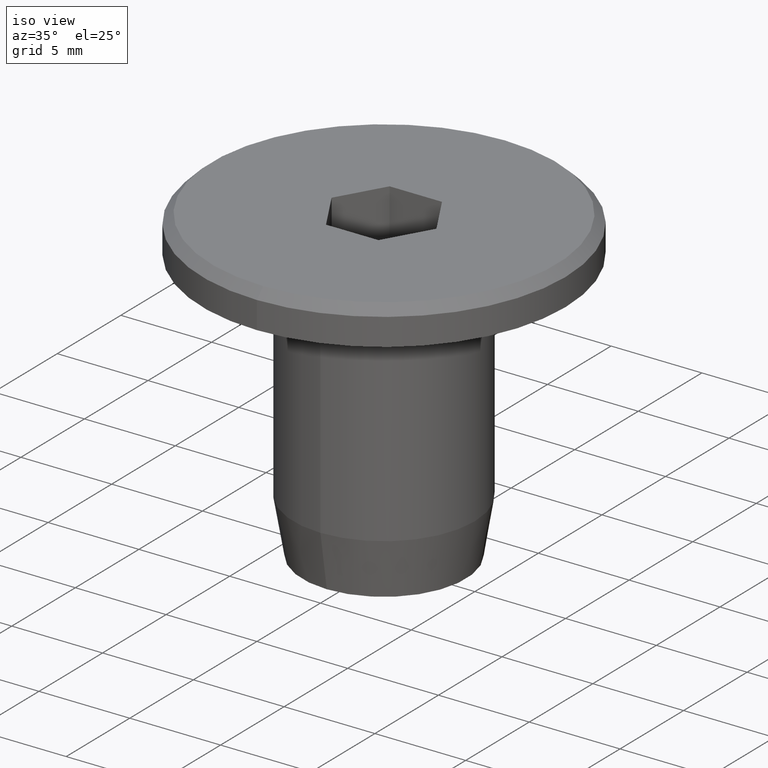
[diagram: clean part render]
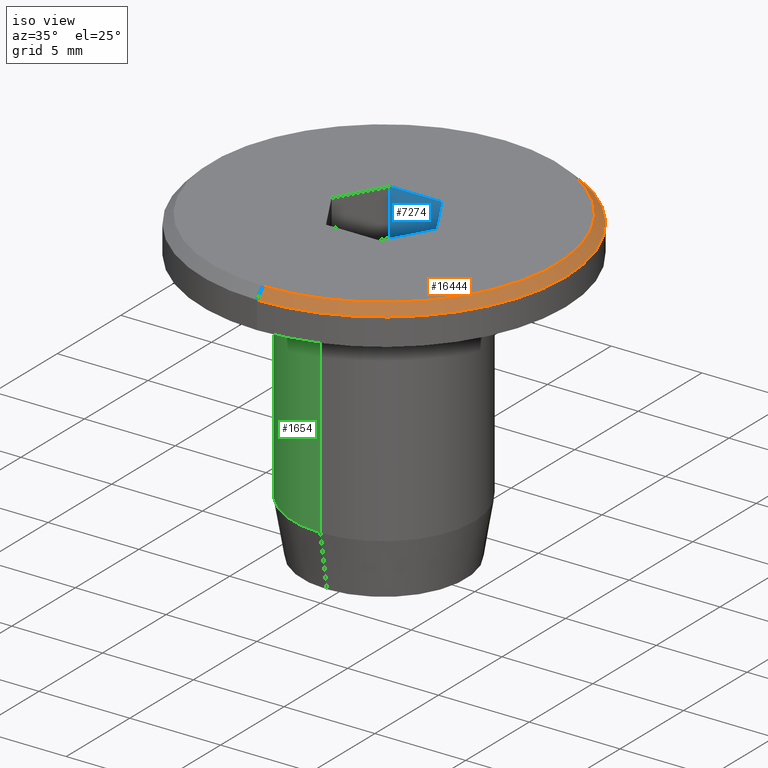
[diagram: same view with three faces highlighted in distinct colors, each labeled with its STEP entity id]
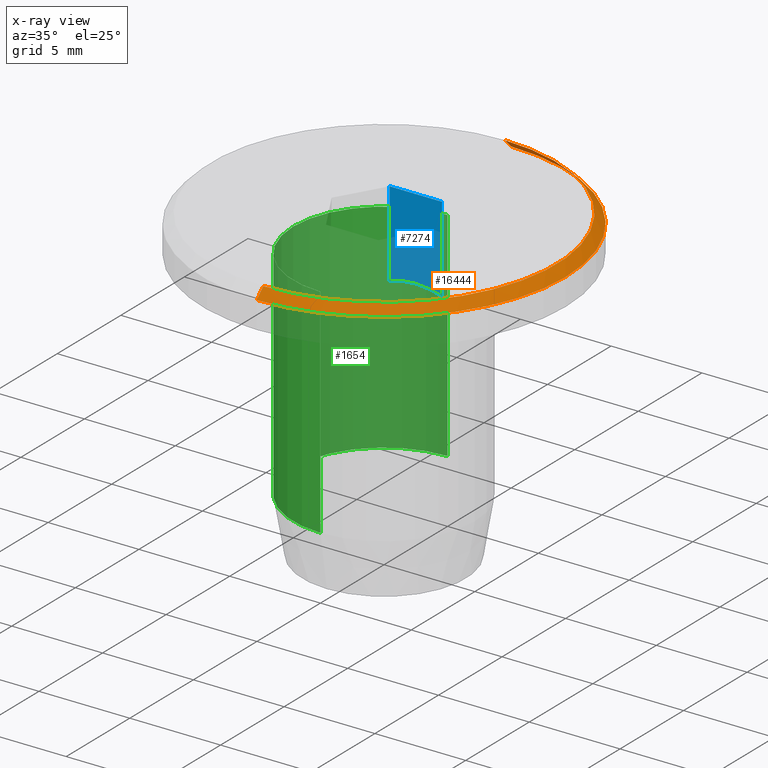
[diagram: x-ray of the same camera — body ghosted, the three highlighted faces saturated]
A machine part, iso view with three faces highlighted in distinct colors.
The next image is the same camera in x-ray (body ghosted, the three faces saturated) — at least one of them is partly hidden behind the body in this view.
Their STEP definitions:

[orange] entity #16444 — the highlighted conical surface has half-angle 45 deg.
#1358 = DIRECTION ( 'NONE',  ( 0.0000000000000000000, 0.7071067811865514600, -0.7071067811865435800 ) ) ;
#1519 = CARTESIAN_POINT ( 'NONE',  ( 1.224646799147353300E-015, -10.00000000000000000, 8.000000000000007100 ) ) ;
#2180 = CARTESIAN_POINT ( 'NONE',  ( 1.224646799147353300E-015, -10.00000000000000000, 8.000000000000003600 ) ) ;
#2277 = VECTOR ( 'NONE', #4426, 999.9999999999998900 ) ;
#3090 = FACE_OUTER_BOUND ( 'NONE', #11276, .T. ) ;
#3468 = DIRECTION ( 'NONE',  ( 0.0000000000000000000, -1.000000000000000000, -1.734723475976807100E-016 ) ) ;
#4426 = DIRECTION ( 'NONE',  ( 8.659560562354979700E-017, -0.7071067811865510100, -0.7071067811865441300 ) ) ;
#4471 = DIRECTION ( 'NONE',  ( 0.0000000000000000000, -1.000000000000000000, -1.826024711554532700E-016 ) ) ;
#5118 = CARTESIAN_POINT ( 'NONE',  ( 0.0000000000000000000, 9.500000000000005300, 8.500000000000000000 ) ) ;
#5761 = ORIENTED_EDGE ( 'NONE', *, *, #14198, .F. ) ;
#5838 = CARTESIAN_POINT ( 'NONE',  ( 0.0000000000000000000, 10.00000000000000000, 8.000000000000007100 ) ) ;
#6059 = EDGE_CURVE ( 'NONE', #14277, #10894, #9957, .T. ) ;
#6091 = VERTEX_POINT ( 'NONE', #13892 ) ;
#6457 = DIRECTION ( 'NONE',  ( 0.0000000000000000000, 1.000000000000000000, 1.734723475976807100E-016 ) ) ;
#7315 = CARTESIAN_POINT ( 'NONE',  ( 0.0000000000000000000, -7.470345474798859200E-016, 8.499999999999998200 ) ) ;
#7438 = DIRECTION ( 'NONE',  ( -0.0000000000000000000, 2.500348904555542100E-016, -1.000000000000000000 ) ) ;
#7989 = ORIENTED_EDGE ( 'NONE', *, *, #15005, .F. ) ;
#8542 = DIRECTION ( 'NONE',  ( 0.0000000000000000000, -2.500348904555543500E-016, 1.000000000000000000 ) ) ;
#9009 = DIRECTION ( 'NONE',  ( -0.0000000000000000000, 2.500348904555542100E-016, -1.000000000000000000 ) ) ;
#9505 = VECTOR ( 'NONE', #1358, 1000.000000000000000 ) ;
#9957 = CIRCLE ( 'NONE', #12554, 10.00000000000000000 ) ;
#10272 = CARTESIAN_POINT ( 'NONE',  ( 0.0000000000000000000, -6.220171022521116300E-016, 8.000000000000008900 ) ) ;
#10536 = CIRCLE ( 'NONE', #13048, 9.500000000000005300 ) ;
#10894 = VERTEX_POINT ( 'NONE', #2180 ) ;
#10937 = CONICAL_SURFACE ( 'NONE', #12392, 10.00000000000000000, 0.7853981633974536100 ) ;
#11276 = EDGE_LOOP ( 'NONE', ( #5761, #14284, #16634, #7989 ) ) ;
#11560 = LINE ( 'NONE', #1519, #2277 ) ;
#11852 = CARTESIAN_POINT ( 'NONE',  ( 0.0000000000000000000, 10.00000000000000000, 8.000000000000010700 ) ) ;
#12392 = AXIS2_PLACEMENT_3D ( 'NONE', #10272, #9009, #6457 ) ;
#12554 = AXIS2_PLACEMENT_3D ( 'NONE', #12563, #7438, #3468 ) ;
#12563 = CARTESIAN_POINT ( 'NONE',  ( 0.0000000000000000000, -6.220171022521108400E-016, 8.000000000000005300 ) ) ;
#13048 = AXIS2_PLACEMENT_3D ( 'NONE', #7315, #8542, #4471 ) ;
#13292 = VERTEX_POINT ( 'NONE', #5118 ) ;
#13892 = CARTESIAN_POINT ( 'NONE',  ( 1.194030629168669900E-015, -9.500000000000005300, 8.499999999999996400 ) ) ;
#14198 = EDGE_CURVE ( 'NONE', #6091, #13292, #10536, .T. ) ;
#14277 = VERTEX_POINT ( 'NONE', #5838 ) ;
#14284 = ORIENTED_EDGE ( 'NONE', *, *, #15647, .T. ) ;
#15005 = EDGE_CURVE ( 'NONE', #13292, #14277, #16920, .T. ) ;
#15647 = EDGE_CURVE ( 'NONE', #6091, #10894, #11560, .T. ) ;
#16444 = ADVANCED_FACE ( 'NONE', ( #3090 ), #10937, .T. ) ;
#16634 = ORIENTED_EDGE ( 'NONE', *, *, #6059, .F. ) ;
#16920 = LINE ( 'NONE', #11852, #9505 ) ;

[blue] entity #7274 — the highlighted planar face has unit normal (0, 1, 0).
#238 = LINE ( 'NONE', #14452, #13848 ) ;
#901 = CARTESIAN_POINT ( 'NONE',  ( 1.443375672974063900, 2.500000000000000000, -8.499999999999994700 ) ) ;
#1328 = DIRECTION ( 'NONE',  ( 0.0000000000000000000, -0.0000000000000000000, 1.000000000000000000 ) ) ;
#1472 = CARTESIAN_POINT ( 'NONE',  ( -1.443375672974064500, 2.500000000000000000, 8.499999999999998200 ) ) ;
#1533 = CARTESIAN_POINT ( 'NONE',  ( 1.210385980505888500, 2.500000000000000000, 3.878388069410404300 ) ) ;
#1588 = CARTESIAN_POINT ( 'NONE',  ( 1.443375672974063900, 2.500000000000000000, 3.808390903988669000 ) ) ;
#1676 = VERTEX_POINT ( 'NONE', #6746 ) ;
#2958 = CARTESIAN_POINT ( 'NONE',  ( -1.209120578570974400, 2.499999999999999600, 3.878768234505386700 ) ) ;
#3031 = ORIENTED_EDGE ( 'NONE', *, *, #9331, .T. ) ;
#3077 = CARTESIAN_POINT ( 'NONE',  ( -0.4865170399929432700, 2.500000000000000000, 4.018928173165234900 ) ) ;
#3427 = EDGE_CURVE ( 'NONE', #14538, #5941, #3986, .T. ) ;
#3891 = CARTESIAN_POINT ( 'NONE',  ( 1.443375672974063900, 2.500000000000000000, -8.499999999999994700 ) ) ;
#3986 = LINE ( 'NONE', #901, #9335 ) ;
#4331 = CARTESIAN_POINT ( 'NONE',  ( 1.443375672974063900, 2.500000000000000000, 3.808390903988669000 ) ) ;
#4938 = EDGE_CURVE ( 'NONE', #5941, #11083, #238, .T. ) ;
#5640 = CARTESIAN_POINT ( 'NONE',  ( 0.9741318506647495000, 2.500000000000000000, 3.936777651562865200 ) ) ;
#5941 = VERTEX_POINT ( 'NONE', #14819 ) ;
#6609 = CARTESIAN_POINT ( 'NONE',  ( 0.2440508546400301500, 2.499999999999999600, 4.040774557124803900 ) ) ;
#6746 = CARTESIAN_POINT ( 'NONE',  ( -3.233540850500927400E-024, 2.500000000000000000, 4.040774557124803900 ) ) ;
#6985 = CARTESIAN_POINT ( 'NONE',  ( -0.2440607135398905600, 2.500000000000000000, 4.040774557124803900 ) ) ;
#7274 = ADVANCED_FACE ( 'NONE', ( #7458 ), #10566, .F. ) ;
#7458 = FACE_OUTER_BOUND ( 'NONE', #10432, .T. ) ;
#7611 = CARTESIAN_POINT ( 'NONE',  ( -1.443375672974064500, 2.500000000000000000, 3.808390903988669000 ) ) ;
#7860 = ORIENTED_EDGE ( 'NONE', *, *, #4938, .T. ) ;
#8330 = CARTESIAN_POINT ( 'NONE',  ( -3.233540850500927400E-024, 2.500000000000000000, 4.040774557124803900 ) ) ;
#8570 = CARTESIAN_POINT ( 'NONE',  ( -1.443375672974064500, 2.500000000000000000, -8.499999999999994700 ) ) ;
#9331 = EDGE_CURVE ( 'NONE', #16473, #1676, #12791, .T. ) ;
#9335 = VECTOR ( 'NONE', #16632, 1000.000000000000000 ) ;
#9583 = CARTESIAN_POINT ( 'NONE',  ( -0.9686926944381829600, 2.500000000000000400, 3.937966644007993000 ) ) ;
#10432 = EDGE_LOOP ( 'NONE', ( #14743, #3031, #15590, #14669, #7860 ) ) ;
#10566 = PLANE ( 'NONE',  #11031 ) ;
#10862 = CARTESIAN_POINT ( 'NONE',  ( -1.443375672974064500, 2.500000000000000000, 3.808390903988669000 ) ) ;
#11031 = AXIS2_PLACEMENT_3D ( 'NONE', #3891, #11881, #1328 ) ;
#11083 = VERTEX_POINT ( 'NONE', #1472 ) ;
#11203 = EDGE_CURVE ( 'NONE', #1676, #14538, #13006, .T. ) ;
#11272 = DIRECTION ( 'NONE',  ( -0.0000000000000000000, -0.0000000000000000000, 1.000000000000000000 ) ) ;
#11351 = EDGE_CURVE ( 'NONE', #16473, #11083, #13686, .T. ) ;
#11861 = DIRECTION ( 'NONE',  ( -1.000000000000000000, 0.0000000000000000000, 0.0000000000000000000 ) ) ;
#11881 = DIRECTION ( 'NONE',  ( 0.0000000000000000000, 1.000000000000000000, 0.0000000000000000000 ) ) ;
#12791 = B_SPLINE_CURVE_WITH_KNOTS ( 'NONE', 3,
 ( #10862, #2958, #9583, #3077, #6985, #8330 ),
 .UNSPECIFIED., .F., .F.,
 ( 4, 2, 4 ),
 ( 0.002533735065925816100, 0.003264586499287179200, 0.003995437932648542700 ),
 .UNSPECIFIED. ) ;
#13006 = B_SPLINE_CURVE_WITH_KNOTS ( 'NONE', 3,
 ( #13118, #6609, #14729, #5640, #1533, #1588 ),
 .UNSPECIFIED., .F., .F.,
 ( 4, 2, 4 ),
 ( 0.003995437932648542700, 0.004726259843064617300, 0.005457081753480691800 ),
 .UNSPECIFIED. ) ;
#13118 = CARTESIAN_POINT ( 'NONE',  ( -3.233540850500927400E-024, 2.500000000000000000, 4.040774557124803900 ) ) ;
#13686 = LINE ( 'NONE', #8570, #15317 ) ;
#13848 = VECTOR ( 'NONE', #11861, 1000.000000000000000 ) ;
#14452 = CARTESIAN_POINT ( 'NONE',  ( 1.443375672974063900, 2.500000000000000000, 8.499999999999998200 ) ) ;
#14538 = VERTEX_POINT ( 'NONE', #4331 ) ;
#14669 = ORIENTED_EDGE ( 'NONE', *, *, #3427, .T. ) ;
#14729 = CARTESIAN_POINT ( 'NONE',  ( 0.4917152482345325500, 2.500000000000000400, 4.018325043783655700 ) ) ;
#14743 = ORIENTED_EDGE ( 'NONE', *, *, #11351, .F. ) ;
#14819 = CARTESIAN_POINT ( 'NONE',  ( 1.443375672974063900, 2.500000000000000000, 8.499999999999998200 ) ) ;
#15317 = VECTOR ( 'NONE', #11272, 1000.000000000000000 ) ;
#15590 = ORIENTED_EDGE ( 'NONE', *, *, #11203, .T. ) ;
#16473 = VERTEX_POINT ( 'NONE', #7611 ) ;
#16632 = DIRECTION ( 'NONE',  ( -0.0000000000000000000, -0.0000000000000000000, 1.000000000000000000 ) ) ;

[green] entity #1654 — the highlighted cylindrical surface (partial cylindrical patch) has radius 5 mm, axis along (-0, 0, -1).
#904 = FACE_OUTER_BOUND ( 'NONE', #10950, .T. ) ;
#1007 = CARTESIAN_POINT ( 'NONE',  ( 0.0000000000000000000, -2.469647665687786000E-016, 6.500000000000000900 ) ) ;
#1654 = ADVANCED_FACE ( 'NONE', ( #904 ), #6893, .T. ) ;
#2361 = CARTESIAN_POINT ( 'NONE',  ( 6.123233995736770200E-016, -4.999999999999999100, -8.500000000000000000 ) ) ;
#2447 = DIRECTION ( 'NONE',  ( 0.0000000000000000000, 1.000000000000000000, 1.734723475976805400E-016 ) ) ;
#2655 = DIRECTION ( 'NONE',  ( 0.0000000000000000000, -2.500348904555544500E-016, 1.000000000000000000 ) ) ;
#2891 = DIRECTION ( 'NONE',  ( 0.0000000000000000000, 1.000000000000000000, 3.469446951953612200E-016 ) ) ;
#2944 = AXIS2_PLACEMENT_3D ( 'NONE', #6694, #13324, #2891 ) ;
#3622 = DIRECTION ( 'NONE',  ( -0.0000000000000000000, 2.500348904555543500E-016, -1.000000000000000000 ) ) ;
#3998 = CARTESIAN_POINT ( 'NONE',  ( 0.0000000000000000000, 2.753453918897874400E-015, -5.500000000000003600 ) ) ;
#4704 = AXIS2_PLACEMENT_3D ( 'NONE', #3998, #2655, #8019 ) ;
#4912 = DIRECTION ( 'NONE',  ( -0.0000000000000000000, 2.500348904555543500E-016, -1.000000000000000000 ) ) ;
#5323 = ORIENTED_EDGE ( 'NONE', *, *, #16169, .T. ) ;
#5649 = VERTEX_POINT ( 'NONE', #9445 ) ;
#6286 = ORIENTED_EDGE ( 'NONE', *, *, #7124, .T. ) ;
#6412 = LINE ( 'NONE', #2361, #14659 ) ;
#6694 = CARTESIAN_POINT ( 'NONE',  ( 0.0000000000000000000, 3.503558590264536900E-015, -8.499999999999998200 ) ) ;
#6835 = CIRCLE ( 'NONE', #16870, 5.000000000000005300 ) ;
#6893 = CYLINDRICAL_SURFACE ( 'NONE', #2944, 5.000000000000002700 ) ;
#6984 = CARTESIAN_POINT ( 'NONE',  ( 0.0000000000000000000, 5.000000000000005300, 6.500000000000001800 ) ) ;
#7124 = EDGE_CURVE ( 'NONE', #5649, #16374, #6835, .T. ) ;
#7663 = EDGE_CURVE ( 'NONE', #5649, #9990, #6412, .T. ) ;
#7713 = DIRECTION ( 'NONE',  ( -0.0000000000000000000, 2.500348904555543500E-016, -1.000000000000000000 ) ) ;
#8019 = DIRECTION ( 'NONE',  ( 0.0000000000000000000, 1.000000000000000000, 1.734723475976806100E-016 ) ) ;
#9010 = VERTEX_POINT ( 'NONE', #9715 ) ;
#9445 = CARTESIAN_POINT ( 'NONE',  ( 6.123233995736775200E-016, -5.000000000000005300, 6.500000000000000000 ) ) ;
#9715 = CARTESIAN_POINT ( 'NONE',  ( 0.0000000000000000000, 5.000000000000005300, -5.500000000000002700 ) ) ;
#9990 = VERTEX_POINT ( 'NONE', #12865 ) ;
#10002 = ORIENTED_EDGE ( 'NONE', *, *, #16944, .T. ) ;
#10089 = CIRCLE ( 'NONE', #4704, 5.000000000000002700 ) ;
#10950 = EDGE_LOOP ( 'NONE', ( #15020, #6286, #5323, #10002 ) ) ;
#12772 = VECTOR ( 'NONE', #4912, 1000.000000000000000 ) ;
#12865 = CARTESIAN_POINT ( 'NONE',  ( 6.123233995736770200E-016, -5.000000000000000000, -5.500000000000004400 ) ) ;
#13324 = DIRECTION ( 'NONE',  ( -0.0000000000000000000, 2.500348904555543500E-016, -1.000000000000000000 ) ) ;
#14659 = VECTOR ( 'NONE', #7713, 1000.000000000000000 ) ;
#15020 = ORIENTED_EDGE ( 'NONE', *, *, #7663, .F. ) ;
#15356 = CARTESIAN_POINT ( 'NONE',  ( 0.0000000000000000000, 5.000000000000006200, -8.499999999999996400 ) ) ;
#16169 = EDGE_CURVE ( 'NONE', #16374, #9010, #17099, .T. ) ;
#16374 = VERTEX_POINT ( 'NONE', #6984 ) ;
#16870 = AXIS2_PLACEMENT_3D ( 'NONE', #1007, #3622, #2447 ) ;
#16944 = EDGE_CURVE ( 'NONE', #9010, #9990, #10089, .T. ) ;
#17099 = LINE ( 'NONE', #15356, #12772 ) ;